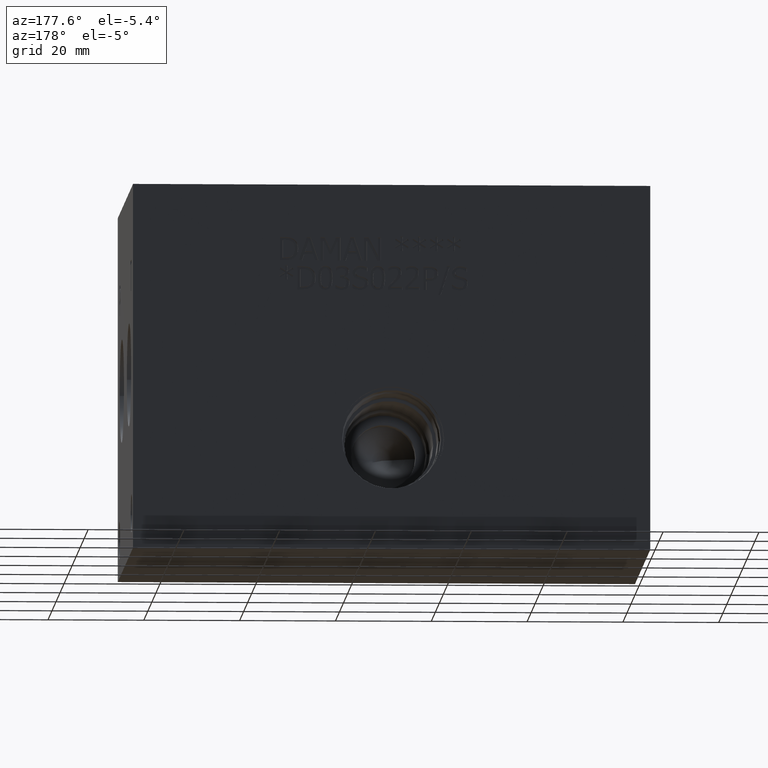
[diagram: clean part render]
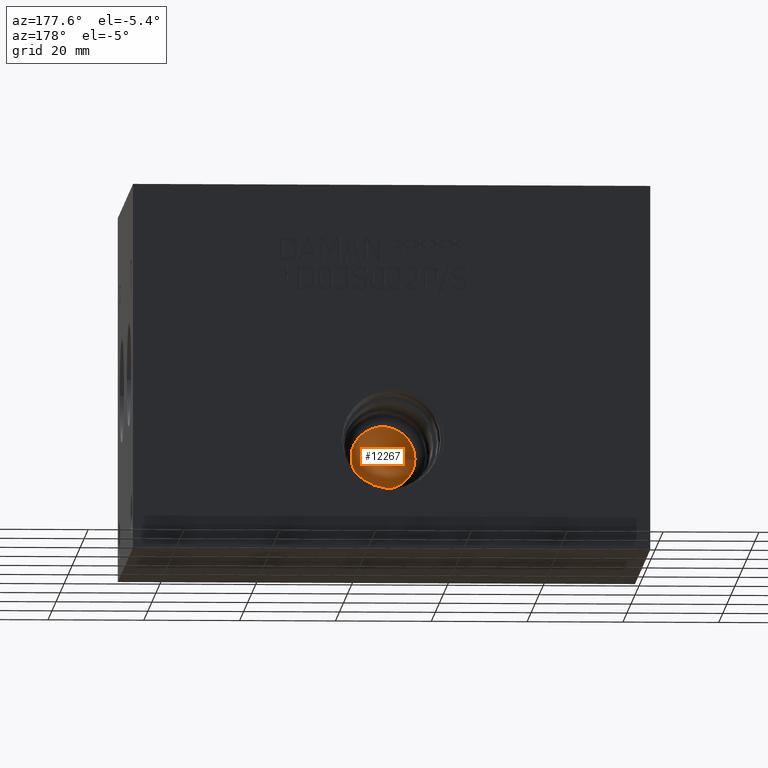
[diagram: same view with one face highlighted and labeled with its STEP entity id]
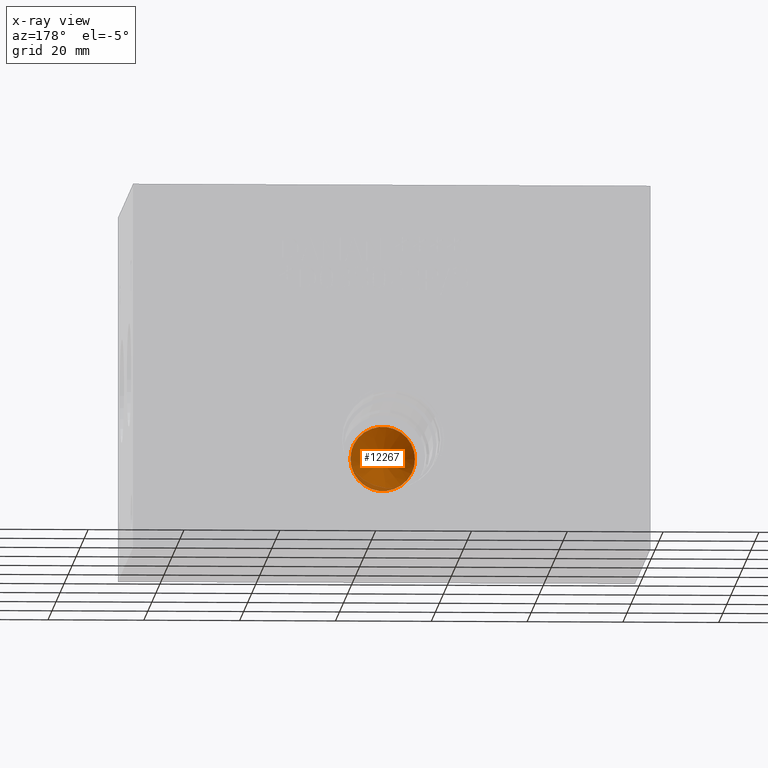
[diagram: x-ray of the same camera — body ghosted, the highlighted face saturated]
A machine part, auxiliary view. The second image highlights one B-rep face of the part: STEP entity #12267.
The next image is the same camera in x-ray: the body ghosted, the highlighted face saturated — about 5% of this face is hidden behind the body in this view.
In plain terms, the highlighted conical surface has half-angle 60 deg.
Its self-contained STEP definition (entity closure, byte-faithful):
#16=CONICAL_SURFACE('',#12786,6.7437,1.0471975523459);
#162=CIRCLE('',#12784,6.7437);
#163=CIRCLE('',#12785,6.7437);
#1309=FACE_OUTER_BOUND('',#2006,.T.);
#2006=EDGE_LOOP('',(#10494,#10495,#10496,#10497));
#3200=LINE('',#20827,#4328);
#4328=VECTOR('',#14890,6.7437);
#5750=VERTEX_POINT('',#20820);
#5751=VERTEX_POINT('',#20822);
#5752=VERTEX_POINT('',#20826);
#7399=EDGE_CURVE('',#5750,#5751,#162,.T.);
#7400=EDGE_CURVE('',#5751,#5750,#163,.T.);
#7401=EDGE_CURVE('',#5750,#5752,#3200,.T.);
#10494=ORIENTED_EDGE('',*,*,#7400,.F.);
#10495=ORIENTED_EDGE('',*,*,#7399,.F.);
#10496=ORIENTED_EDGE('',*,*,#7401,.T.);
#10497=ORIENTED_EDGE('',*,*,#7401,.F.);
#12267=ADVANCED_FACE('',(#1309),#16,.F.);
#12784=AXIS2_PLACEMENT_3D('',#20823,#14884,#14885);
#12785=AXIS2_PLACEMENT_3D('',#20824,#14886,#14887);
#12786=AXIS2_PLACEMENT_3D('',#20825,#14888,#14889);
#14884=DIRECTION('center_axis',(0.,-1.,0.));
#14885=DIRECTION('ref_axis',(1.,0.,0.));
#14886=DIRECTION('center_axis',(0.,-1.,0.));
#14887=DIRECTION('ref_axis',(1.,0.,0.));
#14888=DIRECTION('center_axis',(0.,1.,0.));
#14889=DIRECTION('ref_axis',(1.,0.,0.));
#14890=DIRECTION('',(0.86602540435909,-0.499999999004675,1.06057523942865E-16));
#20820=CARTESIAN_POINT('',(47.2313,31.437923,23.0124));
#20822=CARTESIAN_POINT('',(60.7187,31.437923,23.0124));
#20823=CARTESIAN_POINT('Origin',(53.975,31.437923,23.0124));
#20824=CARTESIAN_POINT('Origin',(53.975,31.437923,23.0124));
#20825=CARTESIAN_POINT('Origin',(53.975,31.437923,23.0124));
#20826=CARTESIAN_POINT('',(53.975,27.544446,23.0124));
#20827=CARTESIAN_POINT('',(47.2313,31.437923,23.0124));